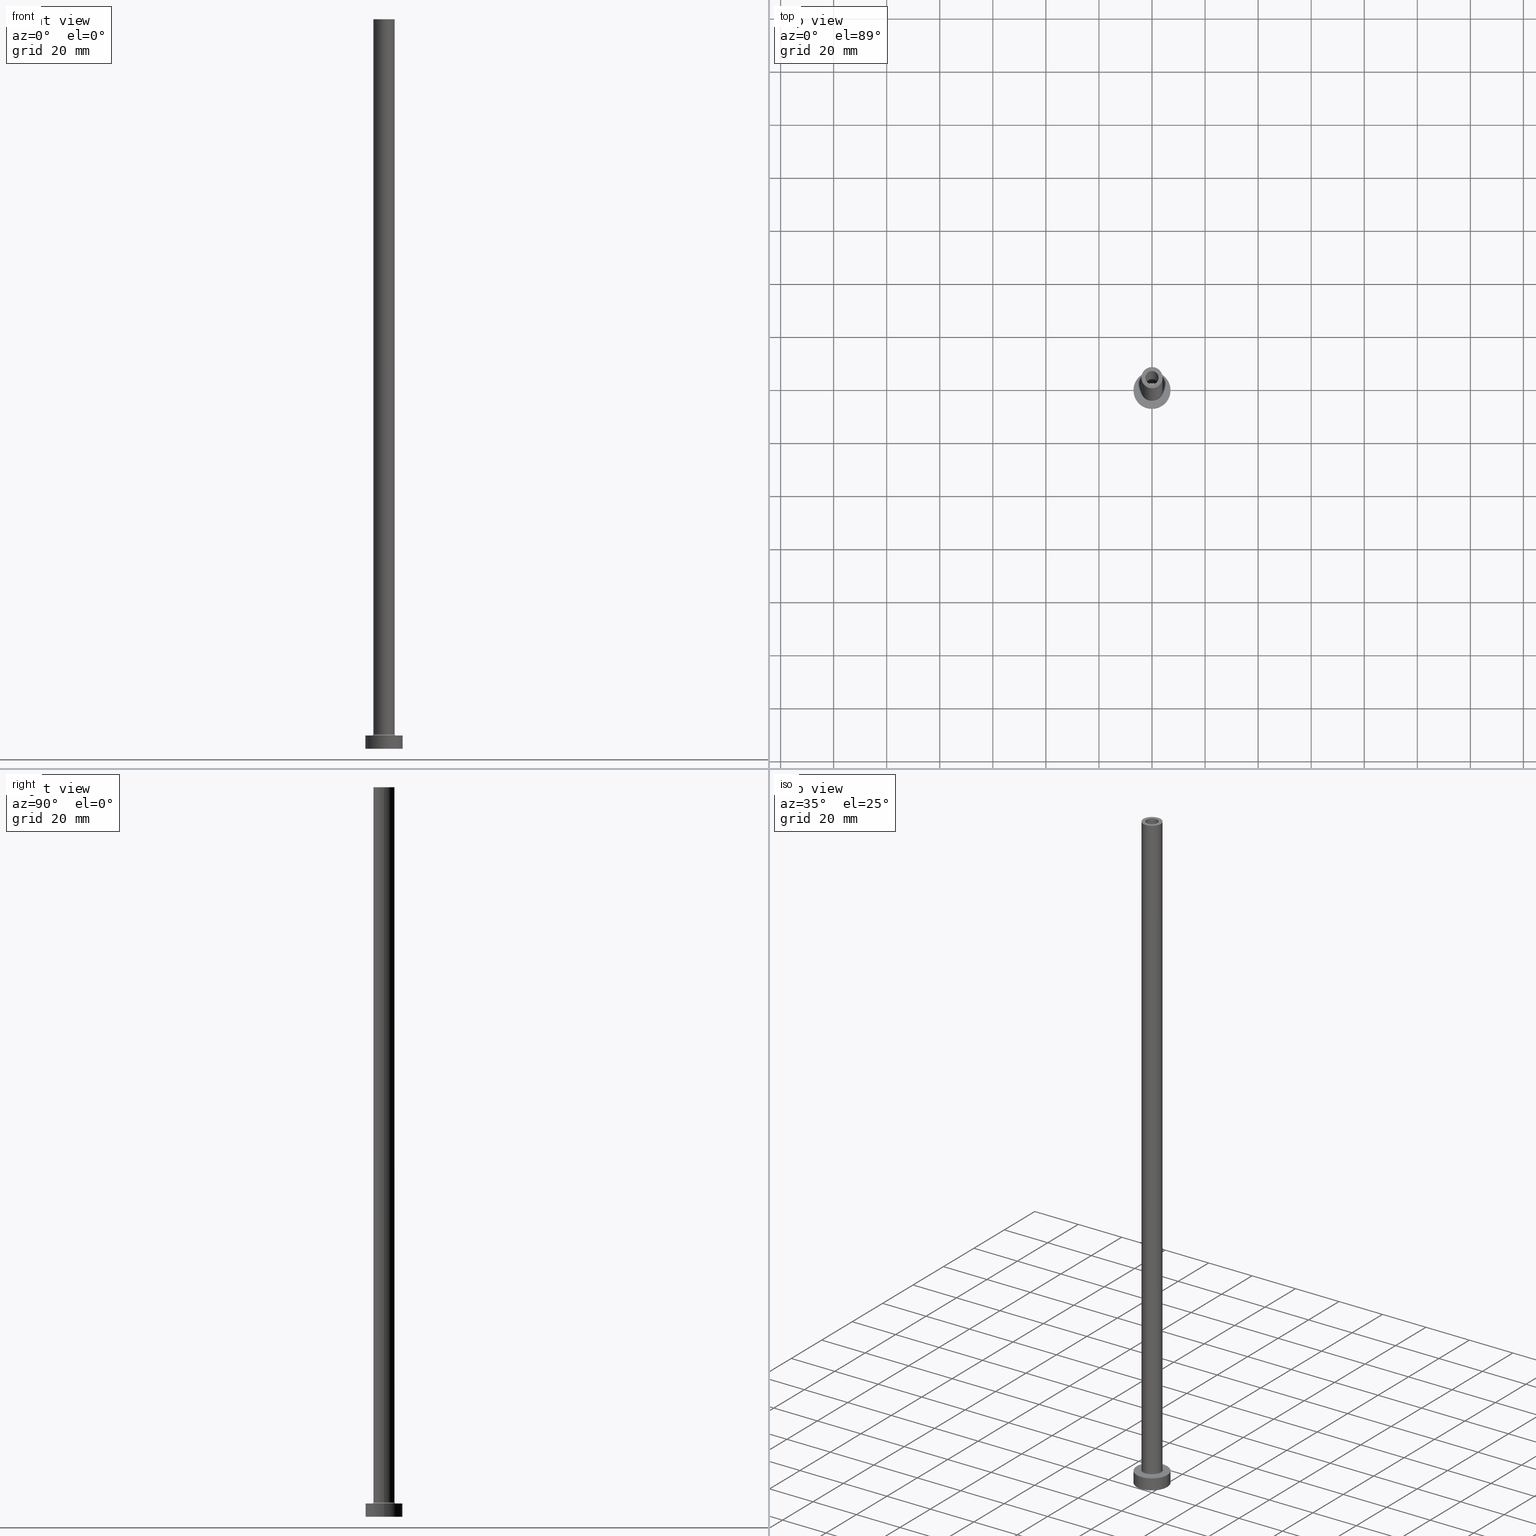
[diagram: canonical four-view strip — front | top / right | iso, engineering-drawing reading convention]
A machine part, canonical four-view strip (front | top / right | iso — engineering-drawing reading convention). The complete STEP part file that produces these views, byte-faithful:
ISO-10303-21;
HEADER;
FILE_DESCRIPTION (( 'STEP AP203' ),
    '1' );
FILE_NAME ('c326.STEP',
    '2023-02-13T17:10:21',
    ( '' ),
    ( '' ),
    'SwSTEP 2.0',
    'SolidWorks 2019',
    '' );
FILE_SCHEMA (( 'CONFIG_CONTROL_DESIGN' ));
ENDSEC;

DATA;
#1 = CARTESIAN_POINT ( 'NONE',  ( 0.000000000000000000, 0.000000000000000000, 275.0000000000000000 ) ) ;
#2 = AXIS2_PLACEMENT_3D ( 'NONE', #348, #31, #92 ) ;
#3 = DIRECTION ( 'NONE',  ( 0.000000000000000000, 0.000000000000000000, 1.000000000000000000 ) ) ;
#4 = ORGANIZATION ( 'NEUR�EN�', 'NEUR�EN�', '' ) ;
#5 = ORIENTED_EDGE ( 'NONE', *, *, #403, .F. ) ;
#6 = APPROVAL ( #400, 'NEUR�EN�' ) ;
#7 = DIRECTION ( 'NONE',  ( -1.000000000000000000, 0.000000000000000000, 0.000000000000000000 ) ) ;
#8 = LINE ( 'NONE', #408, #109 ) ;
#9 = ORIENTED_EDGE ( 'NONE', *, *, #226, .T. ) ;
#10 = EDGE_LOOP ( 'NONE', ( #441, #82 ) ) ;
#11 = FACE_OUTER_BOUND ( 'NONE', #10, .T. ) ;
#12 = VERTEX_POINT ( 'NONE', #241 ) ;
#13 = AXIS2_PLACEMENT_3D ( 'NONE', #142, #283, #24 ) ;
#14 = CIRCLE ( 'NONE', #321, 2.500000000000000000 ) ;
#15 = FACE_OUTER_BOUND ( 'NONE', #74, .T. ) ;
#16 = VERTEX_POINT ( 'NONE', #442 ) ;
#17 = ADVANCED_FACE ( 'NONE', ( #371, #47 ), #305, .T. ) ;
#18 = LINE ( 'NONE', #52, #328 ) ;
#19 = EDGE_LOOP ( 'NONE', ( #153, #91 ) ) ;
#20 = CARTESIAN_POINT ( 'NONE',  ( 0.000000000000000000, 0.000000000000000000, 5.500000000000005329 ) ) ;
#21 = ORIENTED_EDGE ( 'NONE', *, *, #300, .F. ) ;
#22 = VERTEX_POINT ( 'NONE', #344 ) ;
#23 = EDGE_CURVE ( 'NONE', #341, #338, #18, .T. ) ;
#24 = DIRECTION ( 'NONE',  ( 1.000000000000000000, 0.000000000000000000, 0.000000000000000000 ) ) ;
#25 = PERSON_AND_ORGANIZATION ( #143, #4 ) ;
#26 = FACE_BOUND ( 'NONE', #86, .T. ) ;
#27 = CARTESIAN_POINT ( 'NONE',  ( 0.000000000000000000, 0.000000000000000000, 275.0000000000000000 ) ) ;
#28 = AXIS2_PLACEMENT_3D ( 'NONE', #259, #427, #292 ) ;
#29 = APPROVAL_DATE_TIME ( #454, #425 ) ;
#30 = VECTOR ( 'NONE', #157, 1000.000000000000000 ) ;
#31 = DIRECTION ( 'NONE',  ( 0.000000000000000000, -1.000000000000000000, 0.000000000000000000 ) ) ;
#32 = ADVANCED_FACE ( 'NONE', ( #440, #90 ), #444, .T. ) ;
#33 = AXIS2_PLACEMENT_3D ( 'NONE', #424, #450, #384 ) ;
#34 = ADVANCED_FACE ( 'NONE', ( #399 ), #121, .F. ) ;
#35 = CARTESIAN_POINT ( 'NONE',  ( 0.000000000000000000, 0.000000000000000000, 0.000000000000000000 ) ) ;
#36 = CARTESIAN_POINT ( 'NONE',  ( 4.500000000000000888, 0.000000000000000000, 5.000000000000002665 ) ) ;
#37 = CARTESIAN_POINT ( 'NONE',  ( -2.649999999999999911, 0.000000000000000000, 0.000000000000000000 ) ) ;
#38 = FACE_OUTER_BOUND ( 'NONE', #365, .T. ) ;
#39 = CIRCLE ( 'NONE', #60, 2.649999999999999911 ) ;
#40 = TOROIDAL_SURFACE ( 'NONE', #304, 4.500000000000000888, 0.5000000000000000000 ) ;
#41 = ORIENTED_EDGE ( 'NONE', *, *, #361, .F. ) ;
#42 = PERSON_AND_ORGANIZATION ( #143, #4 ) ;
#43 = EDGE_CURVE ( 'NONE', #16, #12, #131, .T. ) ;
#44 = DIRECTION ( 'NONE',  ( 0.000000000000000000, 0.000000000000000000, 1.000000000000000000 ) ) ;
#45 = ORIENTED_EDGE ( 'NONE', *, *, #413, .T. ) ;
#46 = COORDINATED_UNIVERSAL_TIME_OFFSET ( 1, 0, .AHEAD. ) ;
#47 = FACE_OUTER_BOUND ( 'NONE', #308, .T. ) ;
#48 = CARTESIAN_POINT ( 'NONE',  ( 7.000000000000000000, 8.572527594031473190E-16, 5.000000000000000000 ) ) ;
#49 = EDGE_LOOP ( 'NONE', ( #115, #164, #414, #449 ) ) ;
#50 = EDGE_LOOP ( 'NONE', ( #368, #409, #345, #155 ) ) ;
#51 = ORIENTED_EDGE ( 'NONE', *, *, #373, .F. ) ;
#52 = CARTESIAN_POINT ( 'NONE',  ( -2.649999999999999911, 0.000000000000000000, 237.4953318805774245 ) ) ;
#53 = VECTOR ( 'NONE', #358, 1000.000000000000000 ) ;
#54 = PRODUCT_DEFINITION_SHAPE ( 'NONE', 'NONE',  #266 ) ;
#55 = DIRECTION ( 'NONE',  ( -1.000000000000000000, 0.000000000000000000, 0.000000000000000000 ) ) ;
#56 = EDGE_CURVE ( 'NONE', #200, #16, #165, .T. ) ;
#57 = CARTESIAN_POINT ( 'NONE',  ( 0.000000000000000000, 0.000000000000000000, 275.0000000000000000 ) ) ;
#58 = APPROVAL_STATUS ( 'not_yet_approved' ) ;
#59 = DIRECTION ( 'NONE',  ( 0.000000000000000000, 0.000000000000000000, -1.000000000000000000 ) ) ;
#60 = AXIS2_PLACEMENT_3D ( 'NONE', #327, #293, #429 ) ;
#61 = APPROVAL_DATE_TIME ( #139, #208 ) ;
#62 = APPROVAL_PERSON_ORGANIZATION ( #99, #208, #319 ) ;
#63 = DIRECTION ( 'NONE',  ( 0.000000000000000000, 0.000000000000000000, 1.000000000000000000 ) ) ;
#64 = EDGE_CURVE ( 'NONE', #378, #341, #183, .T. ) ;
#65 = DIRECTION ( 'NONE',  ( -1.000000000000000000, 0.000000000000000000, 0.000000000000000000 ) ) ;
#66 = EDGE_CURVE ( 'NONE', #279, #166, #401, .T. ) ;
#67 = CARTESIAN_POINT ( 'NONE',  ( 0.000000000000000000, 0.000000000000000000, 0.000000000000000000 ) ) ;
#68 = FACE_BOUND ( 'NONE', #402, .T. ) ;
#69 = CC_DESIGN_APPROVAL ( #6, ( #266 ) ) ;
#70 = EDGE_CURVE ( 'NONE', #301, #303, #421, .T. ) ;
#71 = CARTESIAN_POINT ( 'NONE',  ( 4.000000000000000000, 4.898587196589412829E-16, 5.500000000000005329 ) ) ;
#72 = FACE_OUTER_BOUND ( 'NONE', #227, .T. ) ;
#73 = ADVANCED_FACE ( 'NONE', ( #248 ), #253, .F. ) ;
#74 = EDGE_LOOP ( 'NONE', ( #233, #89, #261, #263 ) ) ;
#75 = ADVANCED_FACE ( 'NONE', ( #26, #318 ), #324, .F. ) ;
#76 = ORIENTED_EDGE ( 'NONE', *, *, #350, .F. ) ;
#77 = CARTESIAN_POINT ( 'NONE',  ( 0.000000000000000000, 0.000000000000000000, 0.000000000000000000 ) ) ;
#78 = ORIENTED_EDGE ( 'NONE', *, *, #23, .T. ) ;
#79 = AXIS2_PLACEMENT_3D ( 'NONE', #405, #88, #346 ) ;
#80 = ORIENTED_EDGE ( 'NONE', *, *, #291, .T. ) ;
#81 = ORIENTED_EDGE ( 'NONE', *, *, #64, .T. ) ;
#82 = ORIENTED_EDGE ( 'NONE', *, *, #64, .F. ) ;
#83 = ORIENTED_EDGE ( 'NONE', *, *, #43, .F. ) ;
#84 = CIRCLE ( 'NONE', #274, 4.000000000000000000 ) ;
#85 = CIRCLE ( 'NONE', #127, 7.000000000000000000 ) ;
#86 = EDGE_LOOP ( 'NONE', ( #21, #265 ) ) ;
#87 = DIRECTION ( 'NONE',  ( 0.000000000000000000, 0.000000000000000000, -1.000000000000000000 ) ) ;
#88 = DIRECTION ( 'NONE',  ( 0.000000000000000000, 0.000000000000000000, 1.000000000000000000 ) ) ;
#89 = ORIENTED_EDGE ( 'NONE', *, *, #355, .T. ) ;
#90 = FACE_OUTER_BOUND ( 'NONE', #19, .T. ) ;
#91 = ORIENTED_EDGE ( 'NONE', *, *, #185, .T. ) ;
#92 = DIRECTION ( 'NONE',  ( 0.000000000000000000, 0.000000000000000000, -1.000000000000000000 ) ) ;
#93 = CIRCLE ( 'NONE', #284, 7.000000000000000000 ) ;
#94 = LOCAL_TIME ( 18, 10, 21.00000000000000000, #216 ) ;
#95 = CALENDAR_DATE ( 2023, 13, 2 ) ;
#96 = DIRECTION ( 'NONE',  ( 1.000000000000000000, 0.000000000000000000, 0.000000000000000000 ) ) ;
#97 = EDGE_CURVE ( 'NONE', #196, #369, #453, .T. ) ;
#98 = DIRECTION ( 'NONE',  ( 0.000000000000000000, 0.000000000000000000, 1.000000000000000000 ) ) ;
#99 = PERSON_AND_ORGANIZATION ( #143, #4 ) ;
#100 = EDGE_CURVE ( 'NONE', #204, #303, #179, .T. ) ;
#101 = CARTESIAN_POINT ( 'NONE',  ( -4.500000000000000888, 5.510910596163088569E-16, 5.000000000000002665 ) ) ;
#102 = AXIS2_PLACEMENT_3D ( 'NONE', #434, #255, #225 ) ;
#103 = CARTESIAN_POINT ( 'NONE',  ( 0.000000000000000000, 0.000000000000000000, 275.0000000000000000 ) ) ;
#104 = CARTESIAN_POINT ( 'NONE',  ( -2.500000000000000000, 0.000000000000000000, 275.0000000000000000 ) ) ;
#105 = DIRECTION ( 'NONE',  ( 0.000000000000000000, 0.000000000000000000, 1.000000000000000000 ) ) ;
#106 = EDGE_CURVE ( 'NONE', #22, #338, #107, .T. ) ;
#107 = CIRCLE ( 'NONE', #406, 2.649999999999999911 ) ;
#108 = CARTESIAN_POINT ( 'NONE',  ( 4.000000000000000000, 4.898587196589412829E-16, 275.0000000000000000 ) ) ;
#109 = VECTOR ( 'NONE', #87, 1000.000000000000000 ) ;
#110 = ADVANCED_FACE ( 'NONE', ( #426 ), #177, .T. ) ;
#111 = CYLINDRICAL_SURFACE ( 'NONE', #213, 7.000000000000000000 ) ;
#112 = APPLICATION_CONTEXT ( 'configuration controlled 3d designs of mechanical parts and assemblies' ) ;
#113 = DESIGN_CONTEXT ( 'detailed design', #186, 'design' ) ;
#114 = CLOSED_SHELL ( 'NONE', ( #73, #336, #294, #110, #457, #254, #32, #75, #395, #17, #34, #331, #380, #173 ) ) ;
#115 = ORIENTED_EDGE ( 'NONE', *, *, #97, .F. ) ;
#116 = LINE ( 'NONE', #297, #222 ) ;
#117 = ORIENTED_EDGE ( 'NONE', *, *, #189, .F. ) ;
#118 = CARTESIAN_POINT ( 'NONE',  ( -2.500000000000000000, 0.000000000000000000, 275.0000000000000000 ) ) ;
#119 = ORIENTED_EDGE ( 'NONE', *, *, #43, .T. ) ;
#120 = DIRECTION ( 'NONE',  ( 0.000000000000000000, 0.000000000000000000, 1.000000000000000000 ) ) ;
#121 = TOROIDAL_SURFACE ( 'NONE', #357, 4.500000000000000888, 0.5000000000000000000 ) ;
#122 = ORIENTED_EDGE ( 'NONE', *, *, #355, .F. ) ;
#123 = DIRECTION ( 'NONE',  ( 0.000000000000000000, 0.000000000000000000, 1.000000000000000000 ) ) ;
#124 = EDGE_LOOP ( 'NONE', ( #128, #201, #151, #231 ) ) ;
#125 = CYLINDRICAL_SURFACE ( 'NONE', #188, 4.000000000000000000 ) ;
#126 = ORIENTED_EDGE ( 'NONE', *, *, #220, .F. ) ;
#127 = AXIS2_PLACEMENT_3D ( 'NONE', #67, #105, #256 ) ;
#128 = ORIENTED_EDGE ( 'NONE', *, *, #167, .T. ) ;
#129 = CARTESIAN_POINT ( 'NONE',  ( 0.000000000000000000, 0.000000000000000000, 230.0000000000000284 ) ) ;
#130 = ORIENTED_EDGE ( 'NONE', *, *, #273, .T. ) ;
#131 = CIRCLE ( 'NONE', #79, 7.000000000000000000 ) ;
#132 = DIRECTION ( 'NONE',  ( 1.000000000000000000, 0.000000000000000000, -0.000000000000000000 ) ) ;
#133 = CALENDAR_DATE ( 2023, 13, 2 ) ;
#134 = DIRECTION ( 'NONE',  ( 1.000000000000000000, 0.000000000000000000, 0.000000000000000000 ) ) ;
#135 = EDGE_CURVE ( 'NONE', #200, #397, #148, .T. ) ;
#136 = AXIS2_PLACEMENT_3D ( 'NONE', #212, #386, #290 ) ;
#137 = LOCAL_TIME ( 18, 10, 21.00000000000000000, #287 ) ;
#138 = DIRECTION ( 'NONE',  ( 0.000000000000000000, 0.000000000000000000, 1.000000000000000000 ) ) ;
#139 = DATE_AND_TIME ( #133, #137 ) ;
#140 = DIRECTION ( 'NONE',  ( 0.000000000000000000, 0.000000000000000000, -1.000000000000000000 ) ) ;
#141 = PRODUCT ( 'c326', 'c326', '', ( #154 ) ) ;
#142 = CARTESIAN_POINT ( 'NONE',  ( 0.000000000000000000, 0.000000000000000000, 5.000000000000000000 ) ) ;
#143 = PERSON ( 'NEUR�EN�', 'NEUR�EN�', 'NEUR�EN�', ('NEUR�EN�'), ('NEUR�EN�'), ('NEUR�EN�') ) ;
#144 = APPROVAL_PERSON_ORGANIZATION ( #190, #6, #370 ) ;
#145 = DIRECTION ( 'NONE',  ( 1.000000000000000000, 0.000000000000000000, 0.000000000000000000 ) ) ;
#146 = CC_DESIGN_PERSON_AND_ORGANIZATION_ASSIGNMENT ( #211, #169, ( #407 ) ) ;
#147 = DIRECTION ( 'NONE',  ( 1.000000000000000000, 0.000000000000000000, 0.000000000000000000 ) ) ;
#148 = CIRCLE ( 'NONE', #445, 7.000000000000000000 ) ;
#149 = DIRECTION ( 'NONE',  ( -0.000000000000000000, -0.000000000000000000, -1.000000000000000000 ) ) ;
#150 = EDGE_CURVE ( 'NONE', #446, #369, #246, .T. ) ;
#151 = ORIENTED_EDGE ( 'NONE', *, *, #150, .F. ) ;
#152 = DIRECTION ( 'NONE',  ( 1.000000000000000000, 0.000000000000000000, 0.000000000000000000 ) ) ;
#153 = ORIENTED_EDGE ( 'NONE', *, *, #135, .T. ) ;
#154 = MECHANICAL_CONTEXT ( 'NONE', #112, 'mechanical' ) ;
#155 = ORIENTED_EDGE ( 'NONE', *, *, #460, .T. ) ;
#156 = ORIENTED_EDGE ( 'NONE', *, *, #460, .F. ) ;
#157 = DIRECTION ( 'NONE',  ( -0.000000000000000000, -0.000000000000000000, -1.000000000000000000 ) ) ;
#158 = ORIENTED_EDGE ( 'NONE', *, *, #189, .T. ) ;
#159 = VECTOR ( 'NONE', #443, 1000.000000000000000 ) ;
#160 = APPLICATION_PROTOCOL_DEFINITION ( 'international standard', 'config_control_design', 1994, #186 ) ;
#161 = DIRECTION ( 'NONE',  ( 1.000000000000000000, 0.000000000000000000, -0.000000000000000000 ) ) ;
#162 = CARTESIAN_POINT ( 'NONE',  ( 0.000000000000000000, 0.000000000000000000, 230.0000000000000284 ) ) ;
#163 = DIRECTION ( 'NONE',  ( 0.000000000000000000, 0.000000000000000000, -1.000000000000000000 ) ) ;
#164 = ORIENTED_EDGE ( 'NONE', *, *, #361, .T. ) ;
#165 = LINE ( 'NONE', #314, #451 ) ;
#166 = VERTEX_POINT ( 'NONE', #382 ) ;
#167 = EDGE_CURVE ( 'NONE', #269, #196, #372, .T. ) ;
#168 = DIRECTION ( 'NONE',  ( 1.000000000000000000, 0.000000000000000000, 0.000000000000000000 ) ) ;
#169 = PERSON_AND_ORGANIZATION_ROLE ( 'classification_officer' ) ;
#170 = DIRECTION ( 'NONE',  ( 0.000000000000000000, 0.000000000000000000, 1.000000000000000000 ) ) ;
#171 = DATE_AND_TIME ( #95, #275 ) ;
#172 = DIRECTION ( 'NONE',  ( -1.000000000000000000, 0.000000000000000000, 0.000000000000000000 ) ) ;
#173 = ADVANCED_FACE ( 'NONE', ( #352 ), #459, .F. ) ;
#174 = CIRCLE ( 'NONE', #28, 4.500000000000000888 ) ;
#175 = CC_DESIGN_APPROVAL ( #208, ( #418 ) ) ;
#176 = PERSON_AND_ORGANIZATION ( #143, #4 ) ;
#177 = CYLINDRICAL_SURFACE ( 'NONE', #431, 4.000000000000000000 ) ;
#178 = ADVANCED_BREP_SHAPE_REPRESENTATION ( 'c326', ( #422, #237 ), #215 ) ;
#179 = CIRCLE ( 'NONE', #13, 4.500000000000000888 ) ;
#180 = CARTESIAN_POINT ( 'NONE',  ( -2.649999999999999911, 0.000000000000000000, 230.0000000000000284 ) ) ;
#181 = DIRECTION ( 'NONE',  ( 0.000000000000000000, 0.000000000000000000, 1.000000000000000000 ) ) ;
#182 = CC_DESIGN_PERSON_AND_ORGANIZATION_ASSIGNMENT ( #176, #317, ( #418 ) ) ;
#183 = CIRCLE ( 'NONE', #232, 2.649999999999999911 ) ;
#184 = CARTESIAN_POINT ( 'NONE',  ( 0.000000000000000000, 0.000000000000000000, 237.4953318805774245 ) ) ;
#185 = EDGE_CURVE ( 'NONE', #397, #200, #93, .T. ) ;
#186 = APPLICATION_CONTEXT ( 'configuration controlled 3d designs of mechanical parts and assemblies' ) ;
#187 = CARTESIAN_POINT ( 'NONE',  ( 0.000000000000000000, 0.000000000000000000, 5.000000000000000000 ) ) ;
#188 = AXIS2_PLACEMENT_3D ( 'NONE', #272, #228, #230 ) ;
#189 = EDGE_CURVE ( 'NONE', #335, #204, #396, .T. ) ;
#190 = PERSON_AND_ORGANIZATION ( #143, #4 ) ;
#191 = DIRECTION ( 'NONE',  ( 1.000000000000000000, 0.000000000000000000, 0.000000000000000000 ) ) ;
#192 = DIRECTION ( 'NONE',  ( 1.000000000000000000, 0.000000000000000000, 0.000000000000000000 ) ) ;
#193 = ORIENTED_EDGE ( 'NONE', *, *, #403, .T. ) ;
#194 = CALENDAR_DATE ( 2023, 13, 2 ) ;
#195 = CIRCLE ( 'NONE', #455, 4.000000000000000000 ) ;
#196 = VERTEX_POINT ( 'NONE', #420 ) ;
#197 = AXIS2_PLACEMENT_3D ( 'NONE', #35, #359, #391 ) ;
#198 = PRODUCT_RELATED_PRODUCT_CATEGORY ( 'detail', '', ( #141 ) ) ;
#199 = FACE_OUTER_BOUND ( 'NONE', #50, .T. ) ;
#200 = VERTEX_POINT ( 'NONE', #249 ) ;
#201 = ORIENTED_EDGE ( 'NONE', *, *, #97, .T. ) ;
#202 =( NAMED_UNIT ( * ) PLANE_ANGLE_UNIT ( ) SI_UNIT ( $, .RADIAN. ) );
#203 = CARTESIAN_POINT ( 'NONE',  ( 0.000000000000000000, 0.000000000000000000, 5.500000000000005329 ) ) ;
#204 = VERTEX_POINT ( 'NONE', #101 ) ;
#205 = CALENDAR_DATE ( 2023, 13, 2 ) ;
#206 = CARTESIAN_POINT ( 'NONE',  ( 0.000000000000000000, 0.000000000000000000, 275.0000000000000000 ) ) ;
#207 = LOCAL_TIME ( 18, 10, 21.00000000000000000, #289 ) ;
#208 = APPROVAL ( #349, 'NEUR�EN�' ) ;
#209 = CARTESIAN_POINT ( 'NONE',  ( 0.000000000000000000, 0.000000000000000000, 230.0000000000000284 ) ) ;
#210 = DIRECTION ( 'NONE',  ( 0.000000000000000000, 0.000000000000000000, 1.000000000000000000 ) ) ;
#211 = PERSON_AND_ORGANIZATION ( #143, #4 ) ;
#212 = CARTESIAN_POINT ( 'NONE',  ( -4.500000000000000888, 5.510910596163089556E-16, 5.500000000000005329 ) ) ;
#213 = AXIS2_PLACEMENT_3D ( 'NONE', #187, #149, #7 ) ;
#214 = CC_DESIGN_PERSON_AND_ORGANIZATION_ASSIGNMENT ( #247, #411, ( #418 ) ) ;
#215 =( GEOMETRIC_REPRESENTATION_CONTEXT ( 3 ) GLOBAL_UNCERTAINTY_ASSIGNED_CONTEXT ( ( #435 ) ) GLOBAL_UNIT_ASSIGNED_CONTEXT ( ( #234, #202, #398 ) ) REPRESENTATION_CONTEXT ( 'NONE', 'WORKASPACE' ) );
#216 = COORDINATED_UNIVERSAL_TIME_OFFSET ( 1, 0, .AHEAD. ) ;
#217 = DIRECTION ( 'NONE',  ( 1.000000000000000000, 0.000000000000000000, 0.000000000000000000 ) ) ;
#218 = AXIS2_PLACEMENT_3D ( 'NONE', #376, #120, #312 ) ;
#219 = CARTESIAN_POINT ( 'NONE',  ( -4.000000000000000000, 0.000000000000000000, 5.500000000000005329 ) ) ;
#220 = EDGE_CURVE ( 'NONE', #301, #335, #195, .T. ) ;
#221 = AXIS2_PLACEMENT_3D ( 'NONE', #27, #140, #172 ) ;
#222 = VECTOR ( 'NONE', #262, 1000.000000000000000 ) ;
#223 = CARTESIAN_POINT ( 'NONE',  ( -4.000000000000000000, 0.000000000000000000, 275.0000000000000000 ) ) ;
#224 = FACE_OUTER_BOUND ( 'NONE', #306, .T. ) ;
#225 = DIRECTION ( 'NONE',  ( -1.000000000000000000, 0.000000000000000000, 0.000000000000000000 ) ) ;
#226 = EDGE_CURVE ( 'NONE', #303, #204, #174, .T. ) ;
#227 = EDGE_LOOP ( 'NONE', ( #340, #193, #299, #239 ) ) ;
#228 = DIRECTION ( 'NONE',  ( -0.000000000000000000, -0.000000000000000000, -1.000000000000000000 ) ) ;
#229 = LOCAL_TIME ( 18, 10, 21.00000000000000000, #46 ) ;
#230 = DIRECTION ( 'NONE',  ( -1.000000000000000000, 0.000000000000000000, 0.000000000000000000 ) ) ;
#231 = ORIENTED_EDGE ( 'NONE', *, *, #393, .F. ) ;
#232 = AXIS2_PLACEMENT_3D ( 'NONE', #129, #351, #419 ) ;
#233 = ORIENTED_EDGE ( 'NONE', *, *, #185, .F. ) ;
#234 =( LENGTH_UNIT ( ) NAMED_UNIT ( * ) SI_UNIT ( .MILLI., .METRE. ) );
#235 = ORIENTED_EDGE ( 'NONE', *, *, #167, .F. ) ;
#236 = CARTESIAN_POINT ( 'NONE',  ( -2.500000000000000000, 0.000000000000000000, 230.0000000000000284 ) ) ;
#237 = AXIS2_PLACEMENT_3D ( 'NONE', #77, #44, #191 ) ;
#238 = ORIENTED_EDGE ( 'NONE', *, *, #300, .T. ) ;
#239 = ORIENTED_EDGE ( 'NONE', *, *, #23, .F. ) ;
#240 = DIRECTION ( 'NONE',  ( -0.000000000000000000, -0.000000000000000000, -1.000000000000000000 ) ) ;
#241 = CARTESIAN_POINT ( 'NONE',  ( 7.000000000000000000, 8.572527594031473190E-16, 0.000000000000000000 ) ) ;
#242 = EDGE_LOOP ( 'NONE', ( #83, #51 ) ) ;
#243 = EDGE_LOOP ( 'NONE', ( #315, #45, #436, #76 ) ) ;
#244 = CC_DESIGN_PERSON_AND_ORGANIZATION_ASSIGNMENT ( #25, #458, ( #266 ) ) ;
#245 = CARTESIAN_POINT ( 'NONE',  ( 0.000000000000000000, 0.000000000000000000, 0.000000000000000000 ) ) ;
#246 = CIRCLE ( 'NONE', #417, 2.500000000000000000 ) ;
#247 = PERSON_AND_ORGANIZATION ( #143, #4 ) ;
#248 = FACE_OUTER_BOUND ( 'NONE', #124, .T. ) ;
#249 = CARTESIAN_POINT ( 'NONE',  ( -7.000000000000000000, 0.000000000000000000, 5.000000000000000000 ) ) ;
#250 = SECURITY_CLASSIFICATION_LEVEL ( 'unclassified' ) ;
#251 = DIRECTION ( 'NONE',  ( 0.000000000000000000, 0.000000000000000000, 1.000000000000000000 ) ) ;
#252 = AXIS2_PLACEMENT_3D ( 'NONE', #57, #210, #217 ) ;
#253 = CYLINDRICAL_SURFACE ( 'NONE', #33, 2.500000000000000000 ) ;
#254 = ADVANCED_FACE ( 'NONE', ( #38 ), #111, .T. ) ;
#255 = DIRECTION ( 'NONE',  ( 0.000000000000000000, 0.000000000000000000, -1.000000000000000000 ) ) ;
#256 = DIRECTION ( 'NONE',  ( 1.000000000000000000, 0.000000000000000000, 0.000000000000000000 ) ) ;
#257 = AXIS2_PLACEMENT_3D ( 'NONE', #184, #363, #65 ) ;
#258 = FACE_OUTER_BOUND ( 'NONE', #438, .T. ) ;
#259 = CARTESIAN_POINT ( 'NONE',  ( 0.000000000000000000, 0.000000000000000000, 5.000000000000000000 ) ) ;
#260 = AXIS2_PLACEMENT_3D ( 'NONE', #245, #98, #132 ) ;
#261 = ORIENTED_EDGE ( 'NONE', *, *, #373, .T. ) ;
#262 = DIRECTION ( 'NONE',  ( -0.000000000000000000, -0.000000000000000000, -1.000000000000000000 ) ) ;
#263 = ORIENTED_EDGE ( 'NONE', *, *, #56, .F. ) ;
#264 = CARTESIAN_POINT ( 'NONE',  ( 4.000000000000000000, 4.898587196589412829E-16, 275.0000000000000000 ) ) ;
#265 = ORIENTED_EDGE ( 'NONE', *, *, #106, .F. ) ;
#266 = PRODUCT_DEFINITION ( 'NEZN�M�', '', #418, #113 ) ;
#267 = APPLICATION_PROTOCOL_DEFINITION ( 'international standard', 'config_control_design', 1994, #112 ) ;
#268 = ORIENTED_EDGE ( 'NONE', *, *, #70, .T. ) ;
#269 = VERTEX_POINT ( 'NONE', #104 ) ;
#270 = PERSON_AND_ORGANIZATION_ROLE ( 'design_owner' ) ;
#271 = ORIENTED_EDGE ( 'NONE', *, *, #226, .F. ) ;
#272 = CARTESIAN_POINT ( 'NONE',  ( 0.000000000000000000, 0.000000000000000000, 275.0000000000000000 ) ) ;
#273 = EDGE_CURVE ( 'NONE', #166, #279, #84, .T. ) ;
#274 = AXIS2_PLACEMENT_3D ( 'NONE', #392, #430, #152 ) ;
#275 = LOCAL_TIME ( 18, 10, 21.00000000000000000, #423 ) ;
#276 = ORIENTED_EDGE ( 'NONE', *, *, #150, .T. ) ;
#277 = ORIENTED_EDGE ( 'NONE', *, *, #100, .T. ) ;
#278 = EDGE_LOOP ( 'NONE', ( #235, #41 ) ) ;
#279 = VERTEX_POINT ( 'NONE', #108 ) ;
#280 = DATE_AND_TIME ( #322, #207 ) ;
#281 = CARTESIAN_POINT ( 'NONE',  ( 2.500000000000000000, 3.061616997868382648E-16, 275.0000000000000000 ) ) ;
#282 = APPROVAL_ROLE ( '' ) ;
#283 = DIRECTION ( 'NONE',  ( -0.000000000000000000, -0.000000000000000000, -1.000000000000000000 ) ) ;
#284 = AXIS2_PLACEMENT_3D ( 'NONE', #320, #138, #288 ) ;
#285 = AXIS2_PLACEMENT_3D ( 'NONE', #20, #447, #375 ) ;
#286 = EDGE_CURVE ( 'NONE', #341, #378, #39, .T. ) ;
#287 = COORDINATED_UNIVERSAL_TIME_OFFSET ( 1, 0, .AHEAD. ) ;
#288 = DIRECTION ( 'NONE',  ( 1.000000000000000000, 0.000000000000000000, 0.000000000000000000 ) ) ;
#289 = COORDINATED_UNIVERSAL_TIME_OFFSET ( 1, 0, .AHEAD. ) ;
#290 = DIRECTION ( 'NONE',  ( -1.000000000000000000, 1.224646799147351482E-16, 0.000000000000000000 ) ) ;
#291 = EDGE_CURVE ( 'NONE', #369, #446, #332, .T. ) ;
#292 = DIRECTION ( 'NONE',  ( 1.000000000000000000, 0.000000000000000000, 0.000000000000000000 ) ) ;
#293 = DIRECTION ( 'NONE',  ( 0.000000000000000000, 0.000000000000000000, 1.000000000000000000 ) ) ;
#294 = ADVANCED_FACE ( 'NONE', ( #258 ), #40, .F. ) ;
#295 = CC_DESIGN_APPROVAL ( #425, ( #407 ) ) ;
#296 = CC_DESIGN_DATE_AND_TIME_ASSIGNMENT ( #280, #385, ( #407 ) ) ;
#297 = CARTESIAN_POINT ( 'NONE',  ( 7.000000000000000000, 8.572527594031473190E-16, 5.000000000000000000 ) ) ;
#298 = DIRECTION ( 'NONE',  ( 1.000000000000000000, 0.000000000000000000, 0.000000000000000000 ) ) ;
#299 = ORIENTED_EDGE ( 'NONE', *, *, #106, .T. ) ;
#300 = EDGE_CURVE ( 'NONE', #338, #22, #360, .T. ) ;
#301 = VERTEX_POINT ( 'NONE', #71 ) ;
#302 = CC_DESIGN_PERSON_AND_ORGANIZATION_ASSIGNMENT ( #42, #270, ( #141 ) ) ;
#303 = VERTEX_POINT ( 'NONE', #36 ) ;
#304 = AXIS2_PLACEMENT_3D ( 'NONE', #325, #3, #433 ) ;
#305 = PLANE ( 'NONE',  #309 ) ;
#306 = EDGE_LOOP ( 'NONE', ( #5, #81, #78, #238 ) ) ;
#307 = DATE_AND_TIME ( #194, #229 ) ;
#308 = EDGE_LOOP ( 'NONE', ( #130, #313 ) ) ;
#309 = AXIS2_PLACEMENT_3D ( 'NONE', #342, #379, #161 ) ;
#310 = ORIENTED_EDGE ( 'NONE', *, *, #100, .F. ) ;
#311 = DIRECTION ( 'NONE',  ( 1.000000000000000000, 0.000000000000000000, -0.000000000000000000 ) ) ;
#312 = DIRECTION ( 'NONE',  ( 1.000000000000000000, 0.000000000000000000, -0.000000000000000000 ) ) ;
#313 = ORIENTED_EDGE ( 'NONE', *, *, #66, .T. ) ;
#314 = CARTESIAN_POINT ( 'NONE',  ( -7.000000000000000000, 0.000000000000000000, 5.000000000000000000 ) ) ;
#315 = ORIENTED_EDGE ( 'NONE', *, *, #66, .F. ) ;
#316 = DIRECTION ( 'NONE',  ( -0.000000000000000000, -0.000000000000000000, -1.000000000000000000 ) ) ;
#317 = PERSON_AND_ORGANIZATION_ROLE ( 'creator' ) ;
#318 = FACE_OUTER_BOUND ( 'NONE', #242, .T. ) ;
#319 = APPROVAL_ROLE ( '' ) ;
#320 = CARTESIAN_POINT ( 'NONE',  ( 0.000000000000000000, 0.000000000000000000, 5.000000000000000000 ) ) ;
#321 = AXIS2_PLACEMENT_3D ( 'NONE', #1, #461, #145 ) ;
#322 = CALENDAR_DATE ( 2023, 13, 2 ) ;
#323 = CARTESIAN_POINT ( 'NONE',  ( 0.000000000000000000, 0.000000000000000000, 5.000000000000000000 ) ) ;
#324 = PLANE ( 'NONE',  #260 ) ;
#325 = CARTESIAN_POINT ( 'NONE',  ( 0.000000000000000000, 0.000000000000000000, 5.500000000000005329 ) ) ;
#326 = AXIS2_PLACEMENT_3D ( 'NONE', #162, #437, #311 ) ;
#327 = CARTESIAN_POINT ( 'NONE',  ( 0.000000000000000000, 0.000000000000000000, 230.0000000000000284 ) ) ;
#328 = VECTOR ( 'NONE', #163, 1000.000000000000000 ) ;
#329 = CARTESIAN_POINT ( 'NONE',  ( 0.000000000000000000, 0.000000000000000000, 230.0000000000000284 ) ) ;
#330 = LINE ( 'NONE', #223, #53 ) ;
#331 = ADVANCED_FACE ( 'NONE', ( #224 ), #364, .F. ) ;
#332 = CIRCLE ( 'NONE', #387, 2.500000000000000000 ) ;
#333 = CC_DESIGN_SECURITY_CLASSIFICATION ( #407, ( #418 ) ) ;
#334 = CYLINDRICAL_SURFACE ( 'NONE', #257, 2.649999999999999911 ) ;
#335 = VERTEX_POINT ( 'NONE', #219 ) ;
#336 = ADVANCED_FACE ( 'NONE', ( #72 ), #334, .F. ) ;
#337 = PLANE ( 'NONE',  #326 ) ;
#338 = VERTEX_POINT ( 'NONE', #37 ) ;
#339 = CYLINDRICAL_SURFACE ( 'NONE', #354, 7.000000000000000000 ) ;
#340 = ORIENTED_EDGE ( 'NONE', *, *, #286, .T. ) ;
#341 = VERTEX_POINT ( 'NONE', #180 ) ;
#342 = CARTESIAN_POINT ( 'NONE',  ( 0.000000000000000000, 0.000000000000000000, 275.0000000000000000 ) ) ;
#343 = CARTESIAN_POINT ( 'NONE',  ( 0.000000000000000000, 0.000000000000000000, 5.000000000000000000 ) ) ;
#344 = CARTESIAN_POINT ( 'NONE',  ( 2.649999999999999911, 3.245314017740485962E-16, 0.000000000000000000 ) ) ;
#345 = ORIENTED_EDGE ( 'NONE', *, *, #350, .T. ) ;
#346 = DIRECTION ( 'NONE',  ( 1.000000000000000000, 0.000000000000000000, 0.000000000000000000 ) ) ;
#347 = EDGE_LOOP ( 'NONE', ( #9, #277 ) ) ;
#348 = CARTESIAN_POINT ( 'NONE',  ( 4.500000000000000888, 0.000000000000000000, 5.500000000000005329 ) ) ;
#349 = APPROVAL_STATUS ( 'not_yet_approved' ) ;
#350 = EDGE_CURVE ( 'NONE', #166, #335, #330, .T. ) ;
#351 = DIRECTION ( 'NONE',  ( 0.000000000000000000, 0.000000000000000000, 1.000000000000000000 ) ) ;
#352 = FACE_OUTER_BOUND ( 'NONE', #49, .T. ) ;
#353 = CARTESIAN_POINT ( 'NONE',  ( 0.000000000000000000, 0.000000000000000000, 5.500000000000005329 ) ) ;
#354 = AXIS2_PLACEMENT_3D ( 'NONE', #343, #240, #367 ) ;
#355 = EDGE_CURVE ( 'NONE', #397, #12, #116, .T. ) ;
#356 = DIRECTION ( 'NONE',  ( 1.000000000000000000, 0.000000000000000000, 0.000000000000000000 ) ) ;
#357 = AXIS2_PLACEMENT_3D ( 'NONE', #203, #123, #192 ) ;
#358 = DIRECTION ( 'NONE',  ( -0.000000000000000000, -0.000000000000000000, -1.000000000000000000 ) ) ;
#359 = DIRECTION ( 'NONE',  ( -0.000000000000000000, -0.000000000000000000, -1.000000000000000000 ) ) ;
#360 = CIRCLE ( 'NONE', #197, 2.649999999999999911 ) ;
#361 = EDGE_CURVE ( 'NONE', #196, #269, #14, .T. ) ;
#362 = AXIS2_PLACEMENT_3D ( 'NONE', #103, #456, #168 ) ;
#363 = DIRECTION ( 'NONE',  ( 0.000000000000000000, 0.000000000000000000, -1.000000000000000000 ) ) ;
#364 = CYLINDRICAL_SURFACE ( 'NONE', #102, 2.649999999999999911 ) ;
#365 = EDGE_LOOP ( 'NONE', ( #122, #410, #412, #119 ) ) ;
#366 = EDGE_LOOP ( 'NONE', ( #117, #126, #268, #310 ) ) ;
#367 = DIRECTION ( 'NONE',  ( -1.000000000000000000, 0.000000000000000000, 0.000000000000000000 ) ) ;
#368 = ORIENTED_EDGE ( 'NONE', *, *, #413, .F. ) ;
#369 = VERTEX_POINT ( 'NONE', #388 ) ;
#370 = APPROVAL_ROLE ( '' ) ;
#371 = FACE_BOUND ( 'NONE', #278, .T. ) ;
#372 = CIRCLE ( 'NONE', #252, 2.500000000000000000 ) ;
#373 = EDGE_CURVE ( 'NONE', #12, #16, #85, .T. ) ;
#374 = ORIENTED_EDGE ( 'NONE', *, *, #70, .F. ) ;
#375 = DIRECTION ( 'NONE',  ( 1.000000000000000000, 0.000000000000000000, 0.000000000000000000 ) ) ;
#376 = CARTESIAN_POINT ( 'NONE',  ( 0.000000000000000000, 0.000000000000000000, 5.000000000000000000 ) ) ;
#377 = VECTOR ( 'NONE', #59, 1000.000000000000000 ) ;
#378 = VERTEX_POINT ( 'NONE', #389 ) ;
#379 = DIRECTION ( 'NONE',  ( 0.000000000000000000, 0.000000000000000000, 1.000000000000000000 ) ) ;
#380 = ADVANCED_FACE ( 'NONE', ( #68, #11 ), #337, .F. ) ;
#381 = DIRECTION ( 'NONE',  ( -0.000000000000000000, -0.000000000000000000, -1.000000000000000000 ) ) ;
#382 = CARTESIAN_POINT ( 'NONE',  ( -4.000000000000000000, 0.000000000000000000, 275.0000000000000000 ) ) ;
#383 = DATE_TIME_ROLE ( 'creation_date' ) ;
#384 = DIRECTION ( 'NONE',  ( -1.000000000000000000, 0.000000000000000000, 0.000000000000000000 ) ) ;
#385 = DATE_TIME_ROLE ( 'classification_date' ) ;
#386 = DIRECTION ( 'NONE',  ( 1.224646799147353207E-16, 1.000000000000000000, -0.000000000000000000 ) ) ;
#387 = AXIS2_PLACEMENT_3D ( 'NONE', #329, #181, #298 ) ;
#388 = CARTESIAN_POINT ( 'NONE',  ( 2.500000000000000000, 3.061616997868382648E-16, 230.0000000000000284 ) ) ;
#389 = CARTESIAN_POINT ( 'NONE',  ( 2.649999999999999911, 3.245314017740485962E-16, 230.0000000000000284 ) ) ;
#390 = APPROVAL_PERSON_ORGANIZATION ( #452, #425, #282 ) ;
#391 = DIRECTION ( 'NONE',  ( 1.000000000000000000, 0.000000000000000000, 0.000000000000000000 ) ) ;
#392 = CARTESIAN_POINT ( 'NONE',  ( 0.000000000000000000, 0.000000000000000000, 275.0000000000000000 ) ) ;
#393 = EDGE_CURVE ( 'NONE', #269, #446, #439, .T. ) ;
#394 = LINE ( 'NONE', #264, #30 ) ;
#395 = ADVANCED_FACE ( 'NONE', ( #199 ), #125, .T. ) ;
#396 = CIRCLE ( 'NONE', #136, 0.5000000000000004441 ) ;
#397 = VERTEX_POINT ( 'NONE', #48 ) ;
#398 =( NAMED_UNIT ( * ) SI_UNIT ( $, .STERADIAN. ) SOLID_ANGLE_UNIT ( ) );
#399 = FACE_OUTER_BOUND ( 'NONE', #366, .T. ) ;
#400 = APPROVAL_STATUS ( 'not_yet_approved' ) ;
#401 = CIRCLE ( 'NONE', #362, 4.000000000000000000 ) ;
#402 = EDGE_LOOP ( 'NONE', ( #276, #80 ) ) ;
#403 = EDGE_CURVE ( 'NONE', #378, #22, #8, .T. ) ;
#404 = APPROVAL_DATE_TIME ( #307, #6 ) ;
#405 = CARTESIAN_POINT ( 'NONE',  ( 0.000000000000000000, 0.000000000000000000, 0.000000000000000000 ) ) ;
#406 = AXIS2_PLACEMENT_3D ( 'NONE', #416, #381, #356 ) ;
#407 = SECURITY_CLASSIFICATION ( '', '', #250 ) ;
#408 = CARTESIAN_POINT ( 'NONE',  ( 2.649999999999999911, 3.245314017740485962E-16, 237.4953318805774245 ) ) ;
#409 = ORIENTED_EDGE ( 'NONE', *, *, #273, .F. ) ;
#410 = ORIENTED_EDGE ( 'NONE', *, *, #135, .F. ) ;
#411 = PERSON_AND_ORGANIZATION_ROLE ( 'design_supplier' ) ;
#412 = ORIENTED_EDGE ( 'NONE', *, *, #56, .T. ) ;
#413 = EDGE_CURVE ( 'NONE', #279, #301, #394, .T. ) ;
#414 = ORIENTED_EDGE ( 'NONE', *, *, #393, .T. ) ;
#415 = SHAPE_DEFINITION_REPRESENTATION ( #54, #178 ) ;
#416 = CARTESIAN_POINT ( 'NONE',  ( 0.000000000000000000, 0.000000000000000000, 0.000000000000000000 ) ) ;
#417 = AXIS2_PLACEMENT_3D ( 'NONE', #209, #170, #96 ) ;
#418 = PRODUCT_DEFINITION_FORMATION_WITH_SPECIFIED_SOURCE ( 'LIBOVOLN�', '', #141, .NOT_KNOWN. ) ;
#419 = DIRECTION ( 'NONE',  ( 1.000000000000000000, 0.000000000000000000, 0.000000000000000000 ) ) ;
#420 = CARTESIAN_POINT ( 'NONE',  ( 2.500000000000000000, 3.061616997868382648E-16, 275.0000000000000000 ) ) ;
#421 = CIRCLE ( 'NONE', #2, 0.5000000000000004441 ) ;
#422 = MANIFOLD_SOLID_BREP ( 'Odebrat vysunut�m4', #114 ) ;
#423 = COORDINATED_UNIVERSAL_TIME_OFFSET ( 1, 0, .AHEAD. ) ;
#424 = CARTESIAN_POINT ( 'NONE',  ( 0.000000000000000000, 0.000000000000000000, 275.0000000000000000 ) ) ;
#425 = APPROVAL ( #58, 'NEUR�EN�' ) ;
#426 = FACE_OUTER_BOUND ( 'NONE', #243, .T. ) ;
#427 = DIRECTION ( 'NONE',  ( -0.000000000000000000, -0.000000000000000000, -1.000000000000000000 ) ) ;
#428 = CC_DESIGN_DATE_AND_TIME_ASSIGNMENT ( #171, #383, ( #266 ) ) ;
#429 = DIRECTION ( 'NONE',  ( 1.000000000000000000, 0.000000000000000000, 0.000000000000000000 ) ) ;
#430 = DIRECTION ( 'NONE',  ( 0.000000000000000000, 0.000000000000000000, 1.000000000000000000 ) ) ;
#431 = AXIS2_PLACEMENT_3D ( 'NONE', #206, #316, #55 ) ;
#432 = CIRCLE ( 'NONE', #285, 4.000000000000000000 ) ;
#433 = DIRECTION ( 'NONE',  ( 1.000000000000000000, 0.000000000000000000, 0.000000000000000000 ) ) ;
#434 = CARTESIAN_POINT ( 'NONE',  ( 0.000000000000000000, 0.000000000000000000, 237.4953318805774245 ) ) ;
#435 = UNCERTAINTY_MEASURE_WITH_UNIT (LENGTH_MEASURE( 1.000000000000000082E-05 ), #234, 'distance_accuracy_value', 'NONE');
#436 = ORIENTED_EDGE ( 'NONE', *, *, #220, .T. ) ;
#437 = DIRECTION ( 'NONE',  ( 0.000000000000000000, 0.000000000000000000, 1.000000000000000000 ) ) ;
#438 = EDGE_LOOP ( 'NONE', ( #156, #158, #271, #374 ) ) ;
#439 = LINE ( 'NONE', #118, #159 ) ;
#440 = FACE_BOUND ( 'NONE', #347, .T. ) ;
#441 = ORIENTED_EDGE ( 'NONE', *, *, #286, .F. ) ;
#442 = CARTESIAN_POINT ( 'NONE',  ( -7.000000000000000000, 0.000000000000000000, 0.000000000000000000 ) ) ;
#443 = DIRECTION ( 'NONE',  ( 0.000000000000000000, 0.000000000000000000, -1.000000000000000000 ) ) ;
#444 = PLANE ( 'NONE',  #218 ) ;
#445 = AXIS2_PLACEMENT_3D ( 'NONE', #323, #251, #134 ) ;
#446 = VERTEX_POINT ( 'NONE', #236 ) ;
#447 = DIRECTION ( 'NONE',  ( 0.000000000000000000, 0.000000000000000000, 1.000000000000000000 ) ) ;
#448 = DIRECTION ( 'NONE',  ( -0.000000000000000000, -0.000000000000000000, -1.000000000000000000 ) ) ;
#449 = ORIENTED_EDGE ( 'NONE', *, *, #291, .F. ) ;
#450 = DIRECTION ( 'NONE',  ( 0.000000000000000000, 0.000000000000000000, -1.000000000000000000 ) ) ;
#451 = VECTOR ( 'NONE', #448, 1000.000000000000000 ) ;
#452 = PERSON_AND_ORGANIZATION ( #143, #4 ) ;
#453 = LINE ( 'NONE', #281, #377 ) ;
#454 = DATE_AND_TIME ( #205, #94 ) ;
#455 = AXIS2_PLACEMENT_3D ( 'NONE', #353, #63, #147 ) ;
#456 = DIRECTION ( 'NONE',  ( 0.000000000000000000, 0.000000000000000000, 1.000000000000000000 ) ) ;
#457 = ADVANCED_FACE ( 'NONE', ( #15 ), #339, .T. ) ;
#458 = PERSON_AND_ORGANIZATION_ROLE ( 'creator' ) ;
#459 = CYLINDRICAL_SURFACE ( 'NONE', #221, 2.500000000000000000 ) ;
#460 = EDGE_CURVE ( 'NONE', #335, #301, #432, .T. ) ;
#461 = DIRECTION ( 'NONE',  ( 0.000000000000000000, 0.000000000000000000, 1.000000000000000000 ) ) ;
ENDSEC;
END-ISO-10303-21;
